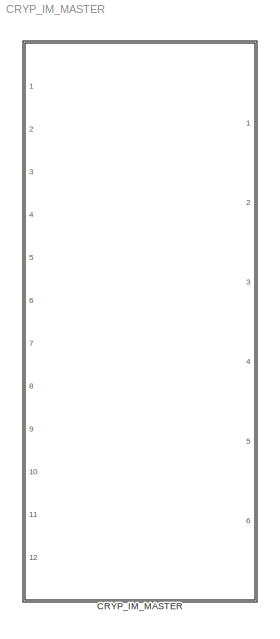
MODEL CRYP_IM_MASTER
KIND library
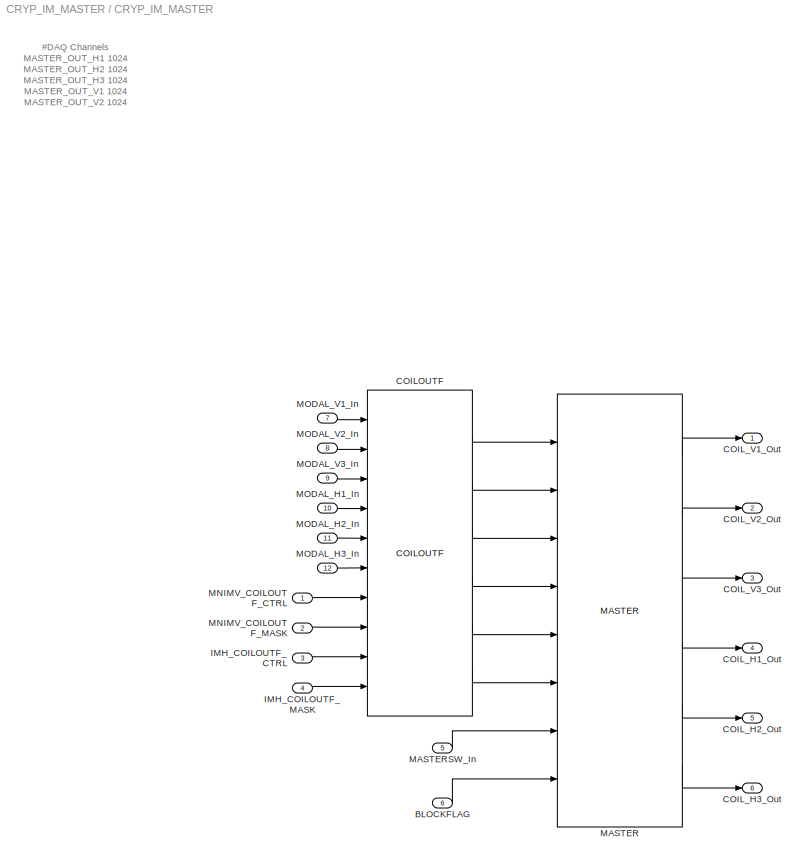
BLOCK [SubSystem] CRYP_IM_MASTER
  Description = SIXOSEMSTAGE_FACE_MASTER
  Ports = [12, 6]
  RequestExecContextInheritance = off
  SID = 1
  Variant = off
BLOCK [Inport] CRYP_IM_MASTER/BLOCKFLAG
  IconDisplay = Port number
  Port = 6
  SID = 590
BLOCK [Reference] CRYP_IM_MASTER/COILOUTF  REF=VIS_LIB/CRYp Blocks/COILOUTF
  Ports = [10, 6]
  SID = 522
  SourceBlock = VIS_LIB/CRYp Blocks/COILOUTF
  SourceType = SubSystem
BLOCK [Outport] CRYP_IM_MASTER/COIL_H1_Out
  IconDisplay = Port number
  Port = 4
  SID = 488
BLOCK [Outport] CRYP_IM_MASTER/COIL_H2_Out
  IconDisplay = Port number
  Port = 5
  SID = 489
BLOCK [Outport] CRYP_IM_MASTER/COIL_H3_Out
  IconDisplay = Port number
  Port = 6
  SID = 490
BLOCK [Outport] CRYP_IM_MASTER/COIL_V1_Out
  IconDisplay = Port number
  SID = 485
BLOCK [Outport] CRYP_IM_MASTER/COIL_V2_Out
  IconDisplay = Port number
  Port = 2
  SID = 486
BLOCK [Outport] CRYP_IM_MASTER/COIL_V3_Out
  IconDisplay = Port number
  Port = 3
  SID = 487
BLOCK [Inport] CRYP_IM_MASTER/IMH_COILOUTF_CTRL
  IconDisplay = Port number
  Port = 3
  SID = 21
BLOCK [Inport] CRYP_IM_MASTER/IMH_COILOUTF_MASK
  IconDisplay = Port number
  Port = 4
  SID = 22
BLOCK [Reference] CRYP_IM_MASTER/MASTER  REF=VIS_LIB/CRYp Blocks/MASTER
  Ports = [8, 6]
  SID = 521
  SourceBlock = VIS_LIB/CRYp Blocks/MASTER
  SourceType = SubSystem
BLOCK [Inport] CRYP_IM_MASTER/MASTERSW_In
  IconDisplay = Port number
  Port = 5
  SID = 23
BLOCK [Inport] CRYP_IM_MASTER/MNIMV_COILOUTF_CTRL
  IconDisplay = Port number
  SID = 19
BLOCK [Inport] CRYP_IM_MASTER/MNIMV_COILOUTF_MASK
  IconDisplay = Port number
  Port = 2
  SID = 20
BLOCK [Inport] CRYP_IM_MASTER/MODAL_H1_In
  IconDisplay = Port number
  Port = 10
  SID = 728
BLOCK [Inport] CRYP_IM_MASTER/MODAL_H2_In
  IconDisplay = Port number
  Port = 11
  SID = 729
BLOCK [Inport] CRYP_IM_MASTER/MODAL_H3_In
  IconDisplay = Port number
  Port = 12
  SID = 730
BLOCK [Inport] CRYP_IM_MASTER/MODAL_V1_In
  IconDisplay = Port number
  Port = 7
  SID = 706
BLOCK [Inport] CRYP_IM_MASTER/MODAL_V2_In
  IconDisplay = Port number
  Port = 8
  SID = 724
BLOCK [Inport] CRYP_IM_MASTER/MODAL_V3_In
  IconDisplay = Port number
  Port = 9
  SID = 726
ANNOTATION CRYP_IM_MASTER: #DAQ Channels\nMASTER_OUT_H1 1024\nMASTER_OUT_H2 1024\nMASTER_OUT_H3 1024\nMASTER_OUT_V1 1024\nMASTER_OUT_V2 1024\nMASTER_OUT_V3 1024\n
LINE CRYP_IM_MASTER/BLOCKFLAG:1 -> CRYP_IM_MASTER/MASTER:8
LINE CRYP_IM_MASTER/COILOUTF:1 -> CRYP_IM_MASTER/MASTER:1
LINE CRYP_IM_MASTER/COILOUTF:2 -> CRYP_IM_MASTER/MASTER:2
LINE CRYP_IM_MASTER/COILOUTF:3 -> CRYP_IM_MASTER/MASTER:3
LINE CRYP_IM_MASTER/COILOUTF:4 -> CRYP_IM_MASTER/MASTER:4
LINE CRYP_IM_MASTER/COILOUTF:5 -> CRYP_IM_MASTER/MASTER:5
LINE CRYP_IM_MASTER/COILOUTF:6 -> CRYP_IM_MASTER/MASTER:6
LINE CRYP_IM_MASTER/IMH_COILOUTF_CTRL:1 -> CRYP_IM_MASTER/COILOUTF:9
LINE CRYP_IM_MASTER/IMH_COILOUTF_MASK:1 -> CRYP_IM_MASTER/COILOUTF:10
LINE CRYP_IM_MASTER/MASTER:1 -> CRYP_IM_MASTER/COIL_V1_Out:1
LINE CRYP_IM_MASTER/MASTER:2 -> CRYP_IM_MASTER/COIL_V2_Out:1
LINE CRYP_IM_MASTER/MASTER:3 -> CRYP_IM_MASTER/COIL_V3_Out:1
LINE CRYP_IM_MASTER/MASTER:4 -> CRYP_IM_MASTER/COIL_H1_Out:1
LINE CRYP_IM_MASTER/MASTER:5 -> CRYP_IM_MASTER/COIL_H2_Out:1
LINE CRYP_IM_MASTER/MASTER:6 -> CRYP_IM_MASTER/COIL_H3_Out:1
LINE CRYP_IM_MASTER/MASTERSW_In:1 -> CRYP_IM_MASTER/MASTER:7
LINE CRYP_IM_MASTER/MNIMV_COILOUTF_CTRL:1 -> CRYP_IM_MASTER/COILOUTF:7
LINE CRYP_IM_MASTER/MNIMV_COILOUTF_MASK:1 -> CRYP_IM_MASTER/COILOUTF:8
LINE CRYP_IM_MASTER/MODAL_H1_In:1 -> CRYP_IM_MASTER/COILOUTF:4
LINE CRYP_IM_MASTER/MODAL_H2_In:1 -> CRYP_IM_MASTER/COILOUTF:5
LINE CRYP_IM_MASTER/MODAL_H3_In:1 -> CRYP_IM_MASTER/COILOUTF:6
LINE CRYP_IM_MASTER/MODAL_V1_In:1 -> CRYP_IM_MASTER/COILOUTF:1
LINE CRYP_IM_MASTER/MODAL_V2_In:1 -> CRYP_IM_MASTER/COILOUTF:2
LINE CRYP_IM_MASTER/MODAL_V3_In:1 -> CRYP_IM_MASTER/COILOUTF:3
